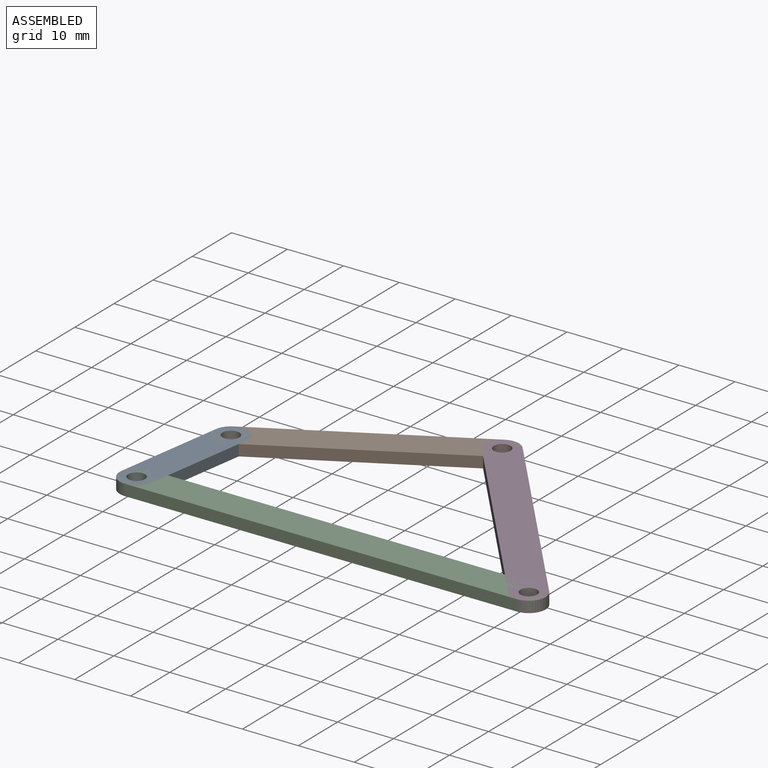
[diagram: assembled view]
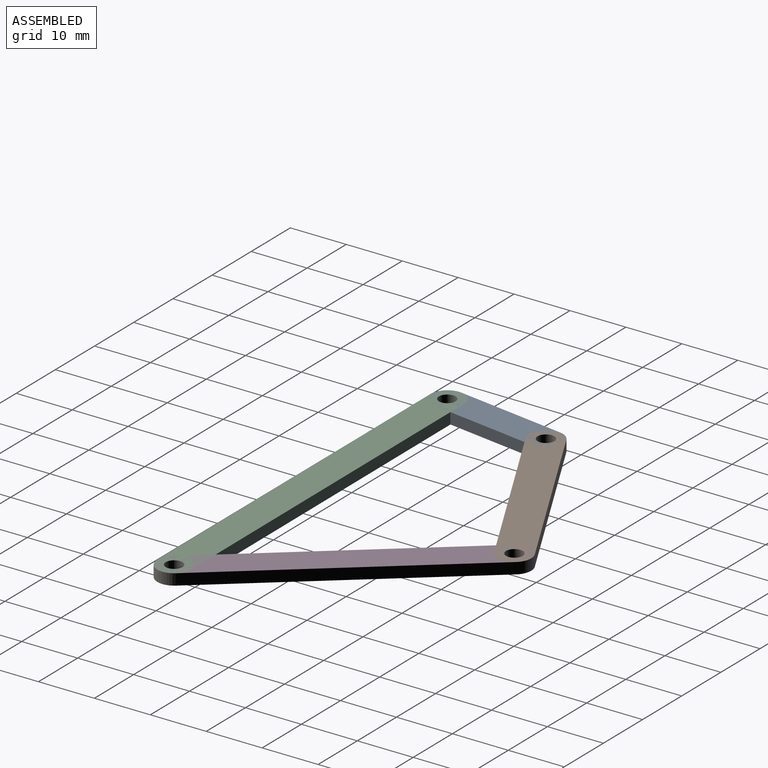
[diagram: assembled view, second angle]
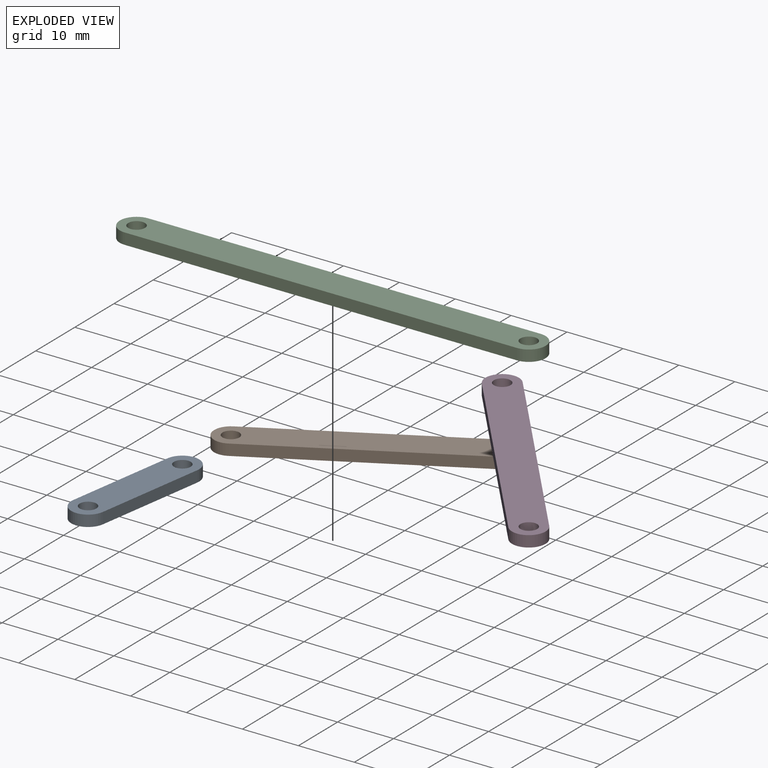
[diagram: exploded view]
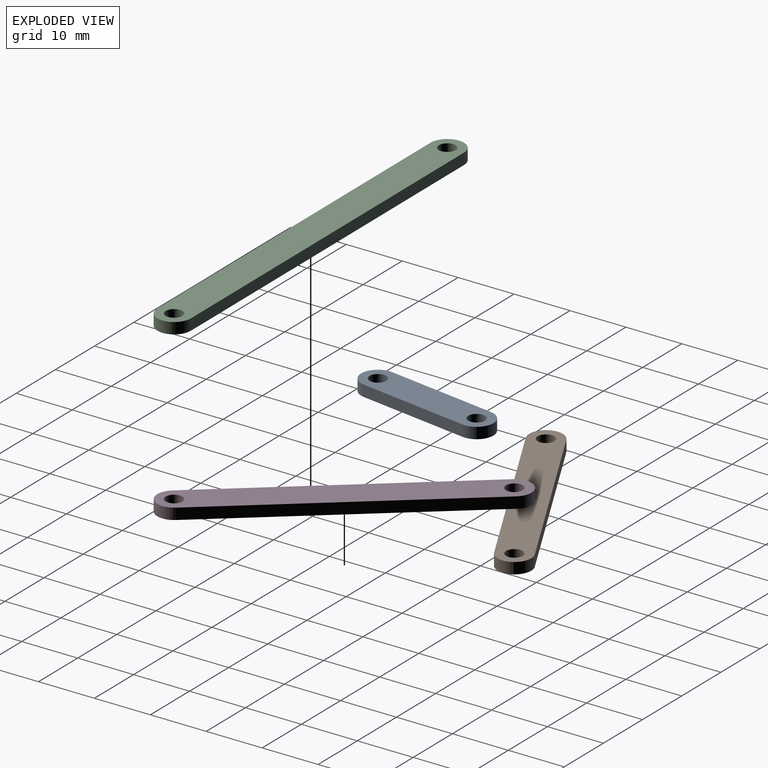
[diagram: exploded view, second angle]
ASSEMBLY  parts=4 mates=4
PART A: 8 faces, bbox 26x6x2 mm
  f0: cylinder r=3mm len=6mm, axis (0,0,-1), area 18.8mm2, adj f1,f5,f6,f7
  f1: plane 20x2mm, normal (0,1,0), area 40mm2, adj f0,f2,f6,f7
  f2: cylinder r=3mm len=6mm, axis (0,0,-1), area 18.8mm2, adj f1,f5,f6,f7
  f3: cylinder r=1.5mm len=3mm, axis (0,0,-1), area 18.8mm2, adj f6,f7
  f4: cylinder r=1.5mm len=3mm, axis (0,0,-1), area 18.8mm2, adj f6,f7
  f5: plane 20x2mm, normal (0,-1,0), area 40mm2, adj f0,f2,f6,f7
  f6: plane 26x6mm, normal (0,0,1), area 134.1mm2, adj f0,f1,f2,f3,f4,f5
  f7: plane 26x6mm, normal (0,0,-1), area 134.1mm2, adj f0,f1,f2,f3,f4,f5
PART B: 8 faces, bbox 46x6x2 mm
  f0: cylinder r=3mm len=6mm, axis (0,0,-1), area 18.8mm2, adj f1,f5,f6,f7
  f1: plane 40x2mm, normal (0,1,0), area 80mm2, adj f0,f2,f6,f7
  f2: cylinder r=3mm len=6mm, axis (0,0,-1), area 18.8mm2, adj f1,f5,f6,f7
  f3: cylinder r=1.5mm len=3mm, axis (0,0,-1), area 18.8mm2, adj f6,f7
  f4: cylinder r=1.5mm len=3mm, axis (0,0,-1), area 18.8mm2, adj f6,f7
  f5: plane 40x2mm, normal (0,-1,0), area 80mm2, adj f0,f2,f6,f7
  f6: plane 46x6mm, normal (0,0,1), area 254.1mm2, adj f0,f1,f2,f3,f4,f5
  f7: plane 46x6mm, normal (0,0,-1), area 254.1mm2, adj f0,f1,f2,f3,f4,f5
PART C: 8 faces, bbox 76x6x2 mm
  f0: cylinder r=3mm len=6mm, axis (0,0,-1), area 18.8mm2, adj f1,f5,f6,f7
  f1: plane 70x2mm, normal (0,1,0), area 140mm2, adj f0,f2,f6,f7
  f2: cylinder r=3mm len=6mm, axis (0,0,-1), area 18.8mm2, adj f1,f5,f6,f7
  f3: cylinder r=1.5mm len=3mm, axis (0,0,-1), area 18.8mm2, adj f6,f7
  f4: cylinder r=1.5mm len=3mm, axis (0,0,-1), area 18.8mm2, adj f6,f7
  f5: plane 70x2mm, normal (0,-1,0), area 140mm2, adj f0,f2,f6,f7
  f6: plane 76x6mm, normal (0,0,1), area 434.1mm2, adj f0,f1,f2,f3,f4,f5
  f7: plane 76x6mm, normal (0,0,-1), area 434.1mm2, adj f0,f1,f2,f3,f4,f5
PART D: 8 faces, bbox 56x6x2 mm
  f0: cylinder r=3mm len=6mm, axis (0,0,-1), area 18.8mm2, adj f1,f5,f6,f7
  f1: plane 50x2mm, normal (0,1,0), area 100mm2, adj f0,f2,f6,f7
  f2: cylinder r=3mm len=6mm, axis (0,0,-1), area 18.8mm2, adj f1,f5,f6,f7
  f3: cylinder r=1.5mm len=3mm, axis (0,0,-1), area 18.8mm2, adj f6,f7
  f4: cylinder r=1.5mm len=3mm, axis (0,0,-1), area 18.8mm2, adj f6,f7
  f5: plane 50x2mm, normal (0,-1,0), area 100mm2, adj f0,f2,f6,f7
  f6: plane 56x6mm, normal (0,0,1), area 314.1mm2, adj f0,f1,f2,f3,f4,f5
  f7: plane 56x6mm, normal (0,0,-1), area 314.1mm2, adj f0,f1,f2,f3,f4,f5
PLACE A rot(axis=(0,0,-1),98.7deg) t=(-15.77,-3.3,-1)mm
PLACE B rot(axis=(0,0,-1),151.6deg) t=(-11.35,20.09,-1)mm
PLACE C rot(axis=(0,0,1),0.1deg) t=(36.17,-8.21,-1)mm fixed
PLACE D rot(axis=(0,0,1),129.5deg) t=(36.17,10.05,-1)mm
MATE revolute A.f2 <-> B.f0  axis (0,0,1) through (-15.77,-3.3,1)mm
MATE revolute D.f0 <-> B.f2  axis (0,0,1) through (19.43,15.7,1)mm
MATE revolute D.f2 <-> C.f0  axis (0,0,1) through (51.21,-22.9,1)mm
MATE revolute A.f0 <-> C.f2  axis (0,0,1) through (-18.79,-23.07,1)mm
